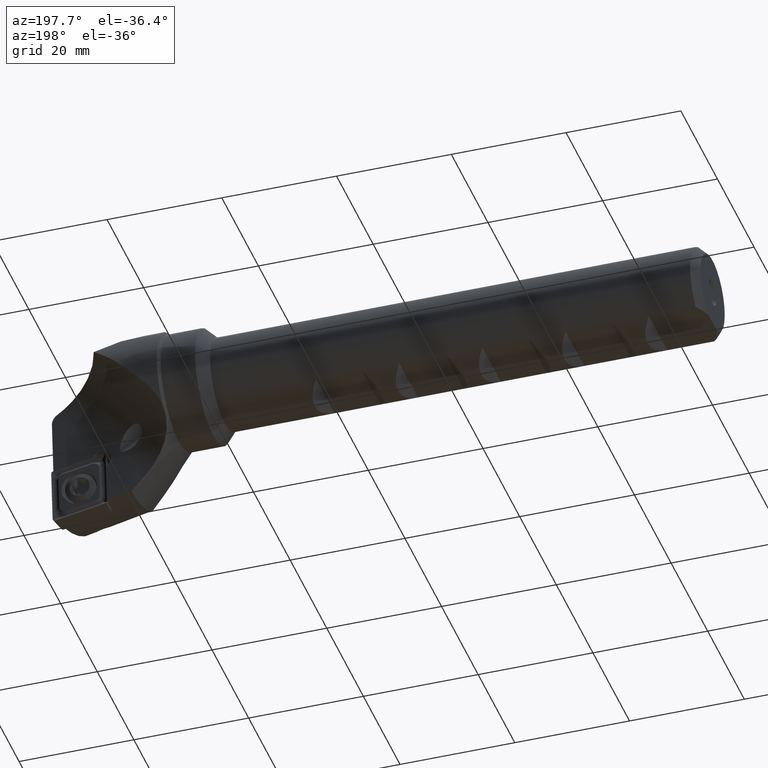
[diagram: clean part render]
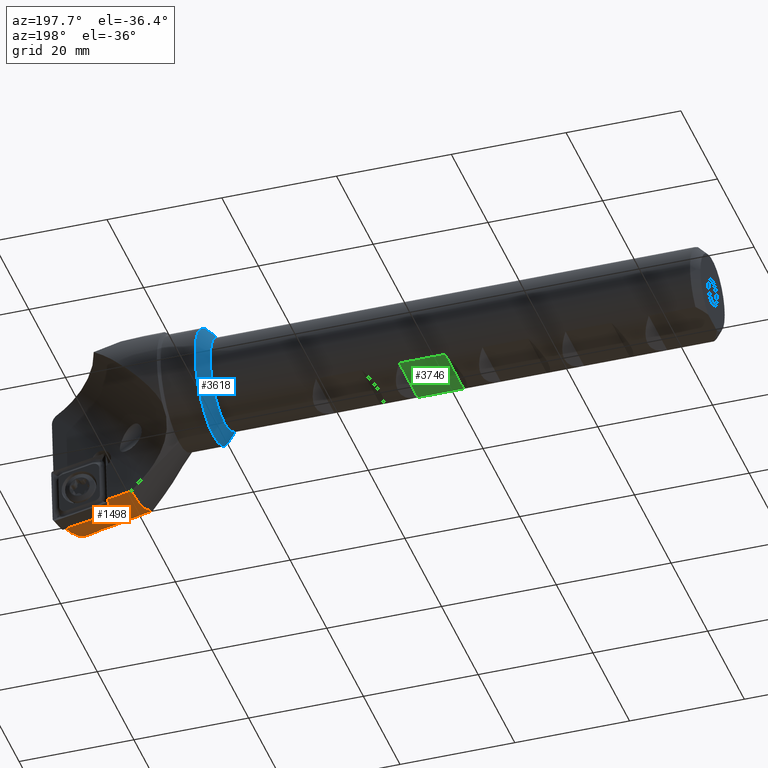
[diagram: same view with three faces highlighted in distinct colors, each labeled with its STEP entity id]
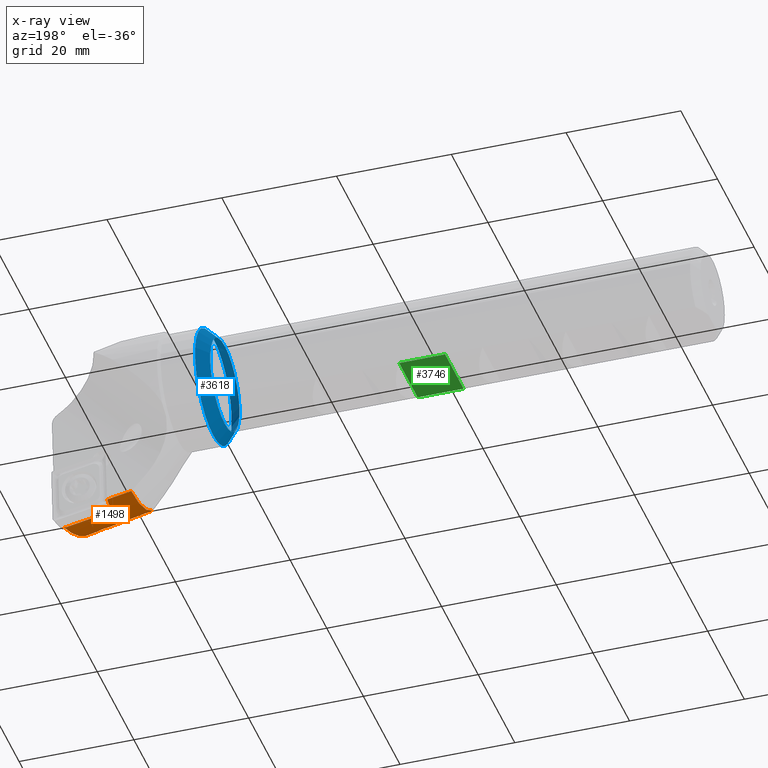
[diagram: x-ray of the same camera — body ghosted, the three highlighted faces saturated]
A machine part, auxiliary view with three faces highlighted in distinct colors.
The next image is the same camera in x-ray (body ghosted, the three faces saturated) — at least one of them is partly hidden behind the body in this view.
Their STEP definitions:

[orange] entity #1498 — the highlighted conical surface has half-angle 10 deg.
#12 = FACE_OUTER_BOUND ( 'NONE', #967, .T. ) ;
#21 = VERTEX_POINT ( 'NONE', #2627 ) ;
#138 = DIRECTION ( 'NONE',  ( -1.000000000000000000, -9.772874859926100200E-033, 8.550157603010381000E-034 ) ) ;
#154 = B_SPLINE_CURVE_WITH_KNOTS ( 'NONE', 3,
 ( #889, #3570, #2003, #1430 ),
 .UNSPECIFIED., .F., .F.,
 ( 4, 4 ),
 ( 0.009931514869584710500, 0.01216132667907357200 ),
 .UNSPECIFIED. ) ;
#181 = EDGE_CURVE ( 'NONE', #2722, #2223, #2431, .T. ) ;
#297 = EDGE_CURVE ( 'NONE', #1481, #631, #1497, .T. ) ;
#308 = CARTESIAN_POINT ( 'NONE',  ( 109.5835036743679900, -11.24422672155367700, -16.23063053211981800 ) ) ;
#374 = CARTESIAN_POINT ( 'NONE',  ( 108.8170349457044800, -11.90350060698469100, -15.58364544425282000 ) ) ;
#532 = EDGE_CURVE ( 'NONE', #2536, #2322, #3636, .T. ) ;
#573 = CARTESIAN_POINT ( 'NONE',  ( 101.2809637619070200, 0.06994083325318986600, -18.28082996868583300 ) ) ;
#613 = CARTESIAN_POINT ( 'NONE',  ( 109.1177259921825400, -11.51167380676628400, -15.94098663390521000 ) ) ;
#628 = DIRECTION ( 'NONE',  ( -1.000000000000000000, -0.0000000000000000000, -0.0000000000000000000 ) ) ;
#631 = VERTEX_POINT ( 'NONE', #1283 ) ;
#728 = CARTESIAN_POINT ( 'NONE',  ( 108.8170349457044800, -11.90350060698469100, -15.58364544425282000 ) ) ;
#774 = EDGE_CURVE ( 'NONE', #21, #631, #3004, .T. ) ;
#822 = ORIENTED_EDGE ( 'NONE', *, *, #2044, .F. ) ;
#886 = CARTESIAN_POINT ( 'NONE',  ( 101.2809637619070200, -11.76430792111945000, -13.99266576465128900 ) ) ;
#889 = CARTESIAN_POINT ( 'NONE',  ( 110.9982520801546100, -11.94303812286716800, -16.03556131871081200 ) ) ;
#966 = EDGE_CURVE ( 'NONE', #1481, #3208, #3429, .T. ) ;
#967 = EDGE_LOOP ( 'NONE', ( #822, #2187, #2642, #3525, #1125, #1241, #1291, #2529, #1154 ) ) ;
#1125 = ORIENTED_EDGE ( 'NONE', *, *, #774, .T. ) ;
#1154 = ORIENTED_EDGE ( 'NONE', *, *, #181, .T. ) ;
#1195 = CARTESIAN_POINT ( 'NONE',  ( 110.8575743934214400, -11.76834453060171400, -16.13474126477744300 ) ) ;
#1241 = ORIENTED_EDGE ( 'NONE', *, *, #297, .F. ) ;
#1283 = CARTESIAN_POINT ( 'NONE',  ( 105.6554933045272700, -3.749360474922675200, -18.67974474496296000 ) ) ;
#1288 =( BOUNDED_CURVE ( )  B_SPLINE_CURVE ( 3, ( #2860, #2648, #2943, #3170 ),
 .UNSPECIFIED., .F., .F. ) 
 B_SPLINE_CURVE_WITH_KNOTS ( ( 4, 4 ),
 ( 4.603318892429866700, 4.670120028680877100 ),
 .UNSPECIFIED. ) 
 CURVE ( )  GEOMETRIC_REPRESENTATION_ITEM ( )  RATIONAL_B_SPLINE_CURVE ( ( 1.000000000000000000, 0.9996281685860897200, 0.9996281685860897200, 1.000000000000000000 ) ) 
 REPRESENTATION_ITEM ( '' )  );
#1291 = ORIENTED_EDGE ( 'NONE', *, *, #966, .T. ) ;
#1406 = CARTESIAN_POINT ( 'NONE',  ( 110.9982520801546100, -11.94303812286716800, -16.03556131871081200 ) ) ;
#1428 = CARTESIAN_POINT ( 'NONE',  ( 113.4959416253061400, -9.574960925888042600, -18.30299113673119700 ) ) ;
#1430 = CARTESIAN_POINT ( 'NONE',  ( 113.1820201214960200, -11.98233263894234200, -16.48469969266173900 ) ) ;
#1481 = VERTEX_POINT ( 'NONE', #1733 ) ;
#1482 = CARTESIAN_POINT ( 'NONE',  ( 104.0933525012749400, 0.02654403701124025100, -18.77685761950365500 ) ) ;
#1494 = CARTESIAN_POINT ( 'NONE',  ( 109.0461215794805600, -11.58495624577781900, -15.87226284872361000 ) ) ;
#1497 = B_SPLINE_CURVE_WITH_KNOTS ( 'NONE', 3,
 ( #2633, #2058, #2917, #2021 ),
 .UNSPECIFIED., .F., .F.,
 ( 4, 4 ),
 ( 0.0003119496319715603700, 0.009002509546470494400 ),
 .UNSPECIFIED. ) ;
#1498 = ADVANCED_FACE ( 'NONE', ( #12 ), #2862, .T. ) ;
#1506 = CARTESIAN_POINT ( 'NONE',  ( 108.9203525981757400, -11.73851713311751200, -15.73137323427266300 ) ) ;
#1539 = DIRECTION ( 'NONE',  ( 0.0000000000000000000, 0.0000000000000000000, 1.000000000000000000 ) ) ;
#1567 = AXIS2_PLACEMENT_3D ( 'NONE', #2881, #1996, #2890 ) ;
#1733 = CARTESIAN_POINT ( 'NONE',  ( 114.2125452932154800, -3.881616059181721900, -20.19143299037612800 ) ) ;
#1764 = CARTESIAN_POINT ( 'NONE',  ( 102.6871545088918200, 0.04824065202929387500, -18.52886417505439500 ) ) ;
#1779 = CARTESIAN_POINT ( 'NONE',  ( 109.7004292108817100, -11.22114207469053500, -16.27153408037439100 ) ) ;
#1807 = CARTESIAN_POINT ( 'NONE',  ( 108.8170349457044800, -11.90350060698469100, -15.58364544425282000 ) ) ;
#1827 = CARTESIAN_POINT ( 'NONE',  ( 110.6931869091841600, -11.59943126844335700, -16.22037497748527500 ) ) ;
#1996 = DIRECTION ( 'NONE',  ( 1.000000000000000000, 0.0000000000000000000, 0.0000000000000000000 ) ) ;
#2003 = CARTESIAN_POINT ( 'NONE',  ( 112.4539918822683800, -11.96927831545480500, -16.33548809242201500 ) ) ;
#2021 = CARTESIAN_POINT ( 'NONE',  ( 105.6554933045272700, -3.749360474922675200, -18.67974474496296000 ) ) ;
#2044 = EDGE_CURVE ( 'NONE', #2322, #2223, #2815, .T. ) ;
#2058 = CARTESIAN_POINT ( 'NONE',  ( 111.3601580747383500, -3.837548834390990500, -19.68774230618052100 ) ) ;
#2128 = CARTESIAN_POINT ( 'NONE',  ( 110.3996601079485900, -11.39561679899842900, -16.30063640472105000 ) ) ;
#2151 = DIRECTION ( 'NONE',  ( 0.0000000000000000000, -1.000000000000000000, 0.0000000000000000000 ) ) ;
#2187 = ORIENTED_EDGE ( 'NONE', *, *, #532, .F. ) ;
#2197 = CARTESIAN_POINT ( 'NONE',  ( 101.2809637619070200, 0.06994083325318986600, -18.28082996868583300 ) ) ;
#2223 = VERTEX_POINT ( 'NONE', #728 ) ;
#2272 = CARTESIAN_POINT ( 'NONE',  ( 114.2125452932154800, -3.881616059181721900, -20.19143299037612800 ) ) ;
#2292 = CARTESIAN_POINT ( 'NONE',  ( 113.8449456050378100, -6.831522529038947400, -19.55833618623411500 ) ) ;
#2322 = VERTEX_POINT ( 'NONE', #886 ) ;
#2324 = EDGE_CURVE ( 'NONE', #2525, #21, #1288, .T. ) ;
#2366 = CARTESIAN_POINT ( 'NONE',  ( 109.2818587472358900, -11.38185603856803300, -16.06941202035045500 ) ) ;
#2381 = CARTESIAN_POINT ( 'NONE',  ( 101.2809637619070200, 0.0000000000000000000, 0.0000000000000000000 ) ) ;
#2386 = CARTESIAN_POINT ( 'NONE',  ( 105.4995569121805500, 0.004850582728946079700, -19.02481493657787200 ) ) ;
#2431 = B_SPLINE_CURVE_WITH_KNOTS ( 'NONE', 3,
 ( #2705, #1195, #1827, #2128, #2975, #3257, #3573, #1779, #308, #3266, #2366, #613, #1494, #1506, #3600, #1807 ),
 .UNSPECIFIED., .F., .F.,
 ( 4, 2, 2, 2, 2, 2, 2, 4 ),
 ( 0.005407815929067071400, 0.006138591918375087400, 0.006503979913029095000, 0.006869367907683103500, 0.007234755902337112000, 0.007600143896991119600, 0.007965531891645127200, 0.008330919886299135600 ),
 .UNSPECIFIED. ) ;
#2525 = VERTEX_POINT ( 'NONE', #2386 ) ;
#2529 = ORIENTED_EDGE ( 'NONE', *, *, #2826, .F. ) ;
#2536 = VERTEX_POINT ( 'NONE', #2197 ) ;
#2599 = CARTESIAN_POINT ( 'NONE',  ( 113.1820201214960200, -11.98233263894234200, -16.48469969266173900 ) ) ;
#2627 = CARTESIAN_POINT ( 'NONE',  ( 105.6554933045272700, -1.268706431809341500, -19.01002240129582100 ) ) ;
#2633 = CARTESIAN_POINT ( 'NONE',  ( 114.2125452932154800, -3.881616059181721900, -20.19143299037612800 ) ) ;
#2642 = ORIENTED_EDGE ( 'NONE', *, *, #2796, .T. ) ;
#2648 = CARTESIAN_POINT ( 'NONE',  ( 105.5513943950964400, -0.4197536524015563800, -19.03406354117597800 ) ) ;
#2705 = CARTESIAN_POINT ( 'NONE',  ( 110.9982520801546100, -11.94303812286716800, -16.03556131871081200 ) ) ;
#2722 = VERTEX_POINT ( 'NONE', #1406 ) ;
#2765 = CARTESIAN_POINT ( 'NONE',  ( 101.2809637619070200, -11.76430792111945000, -13.99266576465128900 ) ) ;
#2796 = EDGE_CURVE ( 'NONE', #2536, #2525, #3716, .T. ) ;
#2803 = AXIS2_PLACEMENT_3D ( 'NONE', #2381, #628, #1539 ) ;
#2815 = B_SPLINE_CURVE_WITH_KNOTS ( 'NONE', 3,
 ( #2765, #3341, #3651, #374 ),
 .UNSPECIFIED., .F., .F.,
 ( 4, 4 ),
 ( 2.045842518176881100E-007, 0.007703627087634014000 ),
 .UNSPECIFIED. ) ;
#2826 = EDGE_CURVE ( 'NONE', #2722, #3208, #154, .T. ) ;
#2833 = AXIS2_PLACEMENT_3D ( 'NONE', #3698, #138, #2151 ) ;
#2860 = CARTESIAN_POINT ( 'NONE',  ( 105.4995569121805500, 0.004850582728946079700, -19.02481493657787200 ) ) ;
#2862 = CONICAL_SURFACE ( 'NONE', #1567, 20.69999999999999900, 0.1745329251994338900 ) ;
#2881 = CARTESIAN_POINT ( 'NONE',  ( 115.0000000000000000, 0.0000000000000000000, 0.0000000000000000000 ) ) ;
#2890 = DIRECTION ( 'NONE',  ( 0.0000000000000000000, 0.0000000000000000000, -1.000000000000000000 ) ) ;
#2912 = CARTESIAN_POINT ( 'NONE',  ( 105.4995569121805500, 0.004850582728946079700, -19.02481493657787200 ) ) ;
#2917 = CARTESIAN_POINT ( 'NONE',  ( 108.5078044666339800, -3.793465078952045700, -19.18386267581124500 ) ) ;
#2943 = CARTESIAN_POINT ( 'NONE',  ( 105.6033925270842700, -0.8444305654646883100, -19.02913086195687600 ) ) ;
#2975 = CARTESIAN_POINT ( 'NONE',  ( 110.2918115107693800, -11.33525140218908000, -16.31941414273461200 ) ) ;
#3004 = CIRCLE ( 'NONE', #2833, 19.05231134817724500 ) ;
#3170 = CARTESIAN_POINT ( 'NONE',  ( 105.6554933045272700, -1.268706431809341500, -19.01002240129582100 ) ) ;
#3208 = VERTEX_POINT ( 'NONE', #3485 ) ;
#3257 = CARTESIAN_POINT ( 'NONE',  ( 110.0628203621343300, -11.24896599483953900, -16.33000357212426600 ) ) ;
#3266 = CARTESIAN_POINT ( 'NONE',  ( 109.3734881434724100, -11.32570548286897200, -16.12865164938674300 ) ) ;
#3341 = CARTESIAN_POINT ( 'NONE',  ( 103.7912327890909800, -11.81143437612566100, -14.53132361021600600 ) ) ;
#3429 =( BOUNDED_CURVE ( )  B_SPLINE_CURVE ( 3, ( #2272, #2292, #1428, #2599 ),
 .UNSPECIFIED., .F., .F. ) 
 B_SPLINE_CURVE_WITH_KNOTS ( ( 4, 4 ),
 ( 1.694967663635197100, 2.130520769826066600 ),
 .UNSPECIFIED. ) 
 CURVE ( )  GEOMETRIC_REPRESENTATION_ITEM ( )  RATIONAL_B_SPLINE_CURVE ( ( 1.000000000000000000, 0.9842535057544924400, 0.9842535057544924400, 1.000000000000000000 ) ) 
 REPRESENTATION_ITEM ( '' )  );
#3485 = CARTESIAN_POINT ( 'NONE',  ( 113.1820201214960200, -11.98233263894234200, -16.48469969266173900 ) ) ;
#3525 = ORIENTED_EDGE ( 'NONE', *, *, #2324, .T. ) ;
#3570 = CARTESIAN_POINT ( 'NONE',  ( 111.7260664366897200, -11.95618129205017900, -16.18578842989666800 ) ) ;
#3573 = CARTESIAN_POINT ( 'NONE',  ( 109.9394896205194500, -11.22337094792517600, -16.32118004795334100 ) ) ;
#3600 = CARTESIAN_POINT ( 'NONE',  ( 108.8655637301873900, -11.81951221880243900, -15.65856728442982200 ) ) ;
#3636 = CIRCLE ( 'NONE', #2803, 18.28096376190703200 ) ;
#3651 = CARTESIAN_POINT ( 'NONE',  ( 106.3034236120437300, -11.85776252772729400, -15.06085680611295200 ) ) ;
#3698 = CARTESIAN_POINT ( 'NONE',  ( 105.6554933045272700, -3.260792543872328400E-032, 7.989700496867764200E-033 ) ) ;
#3716 = B_SPLINE_CURVE_WITH_KNOTS ( 'NONE', 3,
 ( #573, #1764, #1482, #2912 ),
 .UNSPECIFIED., .F., .F.,
 ( 4, 4 ),
 ( 2.031108683021411200E-007, 0.004284392472217959800 ),
 .UNSPECIFIED. ) ;

[blue] entity #3618 — the highlighted conical surface has half-angle 45 deg.
#51 = AXIS2_PLACEMENT_3D ( 'NONE', #768, #2830, #2224 ) ;
#416 = AXIS2_PLACEMENT_3D ( 'NONE', #1104, #3424, #1637 ) ;
#418 = AXIS2_PLACEMENT_3D ( 'NONE', #601, #2085, #2665 ) ;
#535 = EDGE_LOOP ( 'NONE', ( #3118 ) ) ;
#601 = CARTESIAN_POINT ( 'NONE',  ( 87.00000000000000000, 0.0000000000000000000, 0.0000000000000000000 ) ) ;
#602 = CARTESIAN_POINT ( 'NONE',  ( 85.00000000000000000, 0.0000000000000000000, 8.000000000000000000 ) ) ;
#701 = ORIENTED_EDGE ( 'NONE', *, *, #1580, .T. ) ;
#768 = CARTESIAN_POINT ( 'NONE',  ( 85.00000000000000000, 0.0000000000000000000, 0.0000000000000000000 ) ) ;
#894 = CARTESIAN_POINT ( 'NONE',  ( 87.00000000000000000, 0.0000000000000000000, 10.00000000000000000 ) ) ;
#951 = VERTEX_POINT ( 'NONE', #894 ) ;
#1095 = VERTEX_POINT ( 'NONE', #602 ) ;
#1104 = CARTESIAN_POINT ( 'NONE',  ( 87.00000000000000000, 0.0000000000000000000, 0.0000000000000000000 ) ) ;
#1553 = CONICAL_SURFACE ( 'NONE', #416, 10.00000000000000000, 0.7853981633974513900 ) ;
#1580 = EDGE_CURVE ( 'NONE', #951, #951, #3389, .T. ) ;
#1637 = DIRECTION ( 'NONE',  ( 0.0000000000000000000, 0.0000000000000000000, -1.000000000000000000 ) ) ;
#2085 = DIRECTION ( 'NONE',  ( -1.000000000000000000, -0.0000000000000000000, -0.0000000000000000000 ) ) ;
#2150 = FACE_OUTER_BOUND ( 'NONE', #2456, .T. ) ;
#2224 = DIRECTION ( 'NONE',  ( 0.0000000000000000000, 0.0000000000000000000, 1.000000000000000000 ) ) ;
#2456 = EDGE_LOOP ( 'NONE', ( #701 ) ) ;
#2612 = EDGE_CURVE ( 'NONE', #1095, #1095, #3034, .T. ) ;
#2665 = DIRECTION ( 'NONE',  ( 0.0000000000000000000, 0.0000000000000000000, 1.000000000000000000 ) ) ;
#2830 = DIRECTION ( 'NONE',  ( -1.000000000000000000, -0.0000000000000000000, -0.0000000000000000000 ) ) ;
#3034 = CIRCLE ( 'NONE', #51, 8.000000000000000000 ) ;
#3118 = ORIENTED_EDGE ( 'NONE', *, *, #2612, .F. ) ;
#3389 = CIRCLE ( 'NONE', #418, 10.00000000000000000 ) ;
#3424 = DIRECTION ( 'NONE',  ( 1.000000000000000000, 0.0000000000000000000, 0.0000000000000000000 ) ) ;
#3519 = FACE_BOUND ( 'NONE', #535, .T. ) ;
#3618 = ADVANCED_FACE ( 'NONE', ( #3519, #2150 ), #1553, .T. ) ;

[green] entity #3746 — the highlighted planar face has unit normal (0, 0, 1).
#36 = EDGE_CURVE ( 'NONE', #1879, #1350, #1414, .T. ) ;
#256 = LINE ( 'NONE', #1475, #1500 ) ;
#338 = VERTEX_POINT ( 'NONE', #2937 ) ;
#382 = EDGE_CURVE ( 'NONE', #415, #1350, #256, .T. ) ;
#415 = VERTEX_POINT ( 'NONE', #1447 ) ;
#470 = CARTESIAN_POINT ( 'NONE',  ( 45.00000000000000000, 5.055689863905813700, -6.199999999999997500 ) ) ;
#558 = CARTESIAN_POINT ( 'NONE',  ( -3.175455607189903200, -5.055689863905819000, -6.199999999999997500 ) ) ;
#564 = CARTESIAN_POINT ( 'NONE',  ( -3.175455607189903200, 5.055689863905819000, -6.199999999999997500 ) ) ;
#730 = DIRECTION ( 'NONE',  ( -0.0000000000000000000, 0.0000000000000000000, 1.000000000000000000 ) ) ;
#1220 = VECTOR ( 'NONE', #3365, 1000.000000000000000 ) ;
#1284 = CARTESIAN_POINT ( 'NONE',  ( 53.00000000000000700, -20.69999999999999900, -6.199999999999997500 ) ) ;
#1350 = VERTEX_POINT ( 'NONE', #470 ) ;
#1414 = LINE ( 'NONE', #564, #2805 ) ;
#1447 = CARTESIAN_POINT ( 'NONE',  ( 45.00000000000000000, -5.055689863905813700, -6.199999999999997500 ) ) ;
#1475 = CARTESIAN_POINT ( 'NONE',  ( 45.00000000000000000, -20.69999999999999900, -6.199999999999997500 ) ) ;
#1500 = VECTOR ( 'NONE', #3238, 1000.000000000000000 ) ;
#1599 = AXIS2_PLACEMENT_3D ( 'NONE', #2179, #730, #2782 ) ;
#1767 = ORIENTED_EDGE ( 'NONE', *, *, #3542, .F. ) ;
#1879 = VERTEX_POINT ( 'NONE', #1967 ) ;
#1888 = PLANE ( 'NONE',  #1599 ) ;
#1967 = CARTESIAN_POINT ( 'NONE',  ( 53.00000000000000700, 5.055689863905820800, -6.199999999999997500 ) ) ;
#2016 = DIRECTION ( 'NONE',  ( -1.000000000000000000, -0.0000000000000000000, -0.0000000000000000000 ) ) ;
#2053 = LINE ( 'NONE', #558, #3325 ) ;
#2179 = CARTESIAN_POINT ( 'NONE',  ( 45.00000000000000000, -20.69999999999999900, -6.199999999999997500 ) ) ;
#2282 = DIRECTION ( 'NONE',  ( 1.000000000000000000, 0.0000000000000000000, 0.0000000000000000000 ) ) ;
#2293 = LINE ( 'NONE', #1284, #1220 ) ;
#2388 = ORIENTED_EDGE ( 'NONE', *, *, #382, .T. ) ;
#2494 = EDGE_LOOP ( 'NONE', ( #1767, #2499, #2388, #3740 ) ) ;
#2499 = ORIENTED_EDGE ( 'NONE', *, *, #3162, .F. ) ;
#2782 = DIRECTION ( 'NONE',  ( 1.000000000000000000, 0.0000000000000000000, 0.0000000000000000000 ) ) ;
#2805 = VECTOR ( 'NONE', #2016, 1000.000000000000000 ) ;
#2937 = CARTESIAN_POINT ( 'NONE',  ( 53.00000000000000700, -5.055689863905820800, -6.199999999999997500 ) ) ;
#3162 = EDGE_CURVE ( 'NONE', #415, #338, #2053, .T. ) ;
#3238 = DIRECTION ( 'NONE',  ( -0.0000000000000000000, 1.000000000000000000, -0.0000000000000000000 ) ) ;
#3322 = FACE_OUTER_BOUND ( 'NONE', #2494, .T. ) ;
#3325 = VECTOR ( 'NONE', #2282, 1000.000000000000000 ) ;
#3365 = DIRECTION ( 'NONE',  ( -0.0000000000000000000, 1.000000000000000000, -0.0000000000000000000 ) ) ;
#3542 = EDGE_CURVE ( 'NONE', #338, #1879, #2293, .T. ) ;
#3740 = ORIENTED_EDGE ( 'NONE', *, *, #36, .F. ) ;
#3746 = ADVANCED_FACE ( 'NONE', ( #3322 ), #1888, .F. ) ;